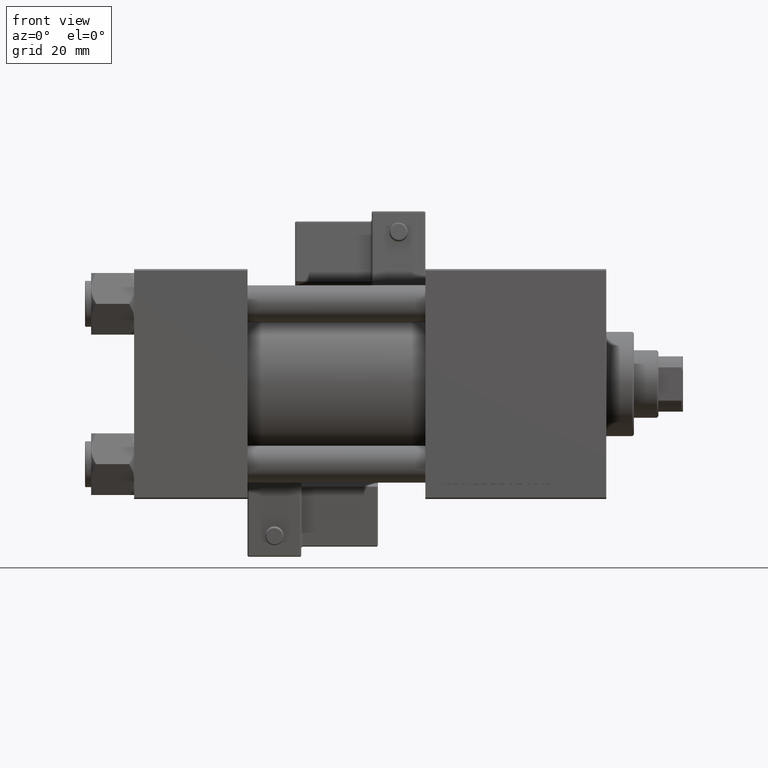
[diagram: clean part render]
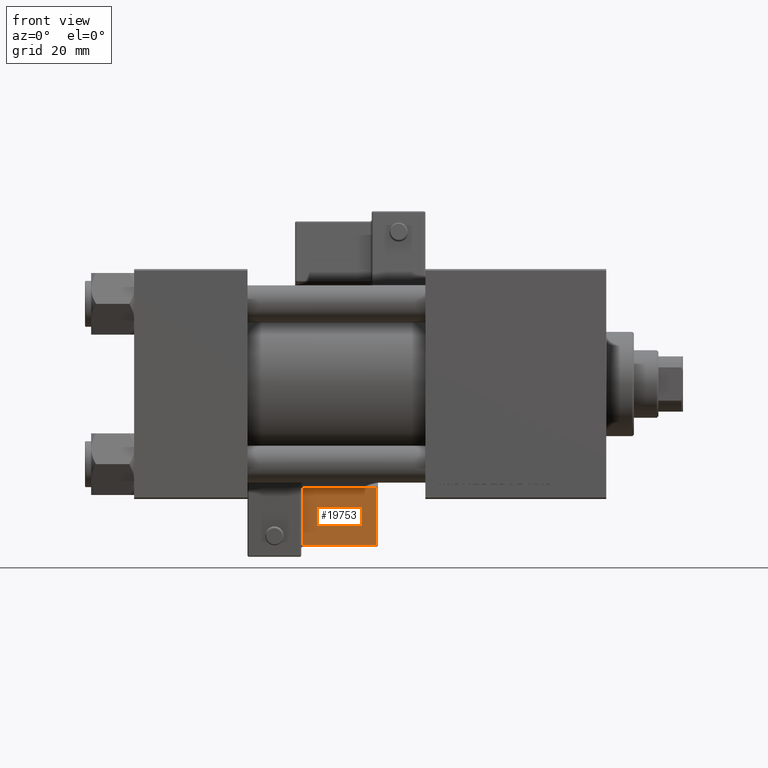
[diagram: same view with one face highlighted and labeled with its STEP entity id]
A machine part, front view. The second image highlights one B-rep face of the part: STEP entity #19753.
In plain terms, the highlighted planar face has unit normal (-0, 0.9963, 0.086).
Its self-contained STEP definition (entity closure, byte-faithful):
#654 = LINE ( 'NONE', #38016, #35446 ) ;
#1689 = DIRECTION ( 'NONE',  ( 1.334402673828313339E-16, 0.000000000000000000, -1.000000000000000000 ) ) ;
#3446 = CARTESIAN_POINT ( 'NONE',  ( 33.24999999999999289, -36.25000000000000000, 2.500000000000008438 ) ) ;
#5693 = CARTESIAN_POINT ( 'NONE',  ( 33.75000000000000000, -36.25000000000000000, 2.500000000000009326 ) ) ;
#10202 = CARTESIAN_POINT ( 'NONE',  ( 9.250000000000003553, -36.25000000000000000, 21.50000000000000000 ) ) ;
#13262 = VERTEX_POINT ( 'NONE', #50191 ) ;
#13264 = CARTESIAN_POINT ( 'NONE',  ( 33.75000000000000000, -36.25000000000000000, 22.00000000000000355 ) ) ;
#13330 = EDGE_CURVE ( 'NONE', #13262, #29875, #25815, .T. ) ;
#13794 = DIRECTION ( 'NONE',  ( -0.000000000000000000, 1.000000000000000000, 0.000000000000000000 ) ) ;
#14644 = AXIS2_PLACEMENT_3D ( 'NONE', #13264, #13794, #45322 ) ;
#16127 = DIRECTION ( 'NONE',  ( -1.734723475976807587E-16, -0.000000000000000000, 1.000000000000000000 ) ) ;
#18425 = VERTEX_POINT ( 'NONE', #10202 ) ;
#18763 = VECTOR ( 'NONE', #16127, 1000.000000000000000 ) ;
#19753 = ADVANCED_FACE ( 'NONE', ( #24914 ), #50083, .F. ) ;
#20084 = LINE ( 'NONE', #35736, #18763 ) ;
#20390 = EDGE_CURVE ( 'NONE', #38078, #18425, #46911, .T. ) ;
#21757 = DIRECTION ( 'NONE',  ( -1.000000000000000000, 0.000000000000000000, -1.334402673828313339E-16 ) ) ;
#22094 = ORIENTED_EDGE ( 'NONE', *, *, #20390, .T. ) ;
#22459 = CARTESIAN_POINT ( 'NONE',  ( 33.24999999999999289, -36.25000000000000000, 21.50000000000000000 ) ) ;
#24914 = FACE_OUTER_BOUND ( 'NONE', #46354, .T. ) ;
#25815 = LINE ( 'NONE', #5693, #31216 ) ;
#29370 = ORIENTED_EDGE ( 'NONE', *, *, #46276, .T. ) ;
#29759 = ORIENTED_EDGE ( 'NONE', *, *, #39251, .T. ) ;
#29875 = VERTEX_POINT ( 'NONE', #3446 ) ;
#31216 = VECTOR ( 'NONE', #38033, 1000.000000000000000 ) ;
#35446 = VECTOR ( 'NONE', #1689, 1000.000000000000000 ) ;
#35736 = CARTESIAN_POINT ( 'NONE',  ( 33.24999999999999289, -36.25000000000000000, 22.00000000000000355 ) ) ;
#36105 = VECTOR ( 'NONE', #21757, 1000.000000000000000 ) ;
#38016 = CARTESIAN_POINT ( 'NONE',  ( 9.250000000000005329, -36.25000000000000000, 2.000000000000005329 ) ) ;
#38033 = DIRECTION ( 'NONE',  ( 1.000000000000000000, -0.000000000000000000, 1.334402673828313339E-16 ) ) ;
#38078 = VERTEX_POINT ( 'NONE', #22459 ) ;
#39251 = EDGE_CURVE ( 'NONE', #18425, #13262, #654, .T. ) ;
#40462 = ORIENTED_EDGE ( 'NONE', *, *, #13330, .T. ) ;
#45322 = DIRECTION ( 'NONE',  ( 0.000000000000000000, -0.000000000000000000, 1.000000000000000000 ) ) ;
#46276 = EDGE_CURVE ( 'NONE', #29875, #38078, #20084, .T. ) ;
#46354 = EDGE_LOOP ( 'NONE', ( #29759, #40462, #29370, #22094 ) ) ;
#46911 = LINE ( 'NONE', #50640, #36105 ) ;
#50083 = PLANE ( 'NONE',  #14644 ) ;
#50191 = CARTESIAN_POINT ( 'NONE',  ( 9.250000000000005329, -36.25000000000000000, 2.500000000000004885 ) ) ;
#50640 = CARTESIAN_POINT ( 'NONE',  ( 33.75000000000000000, -36.25000000000000000, 21.50000000000000000 ) ) ;